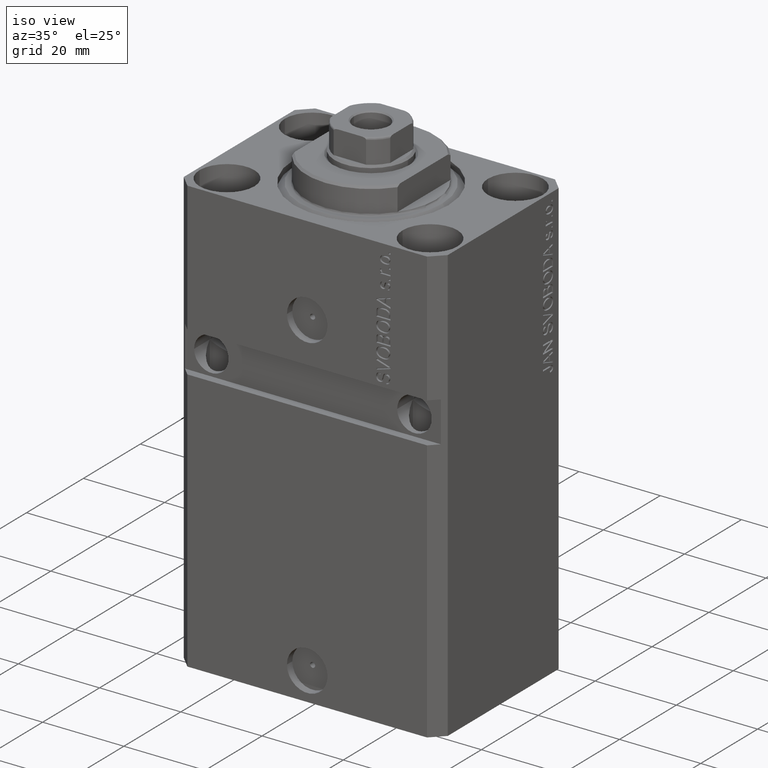
[diagram: clean part render]
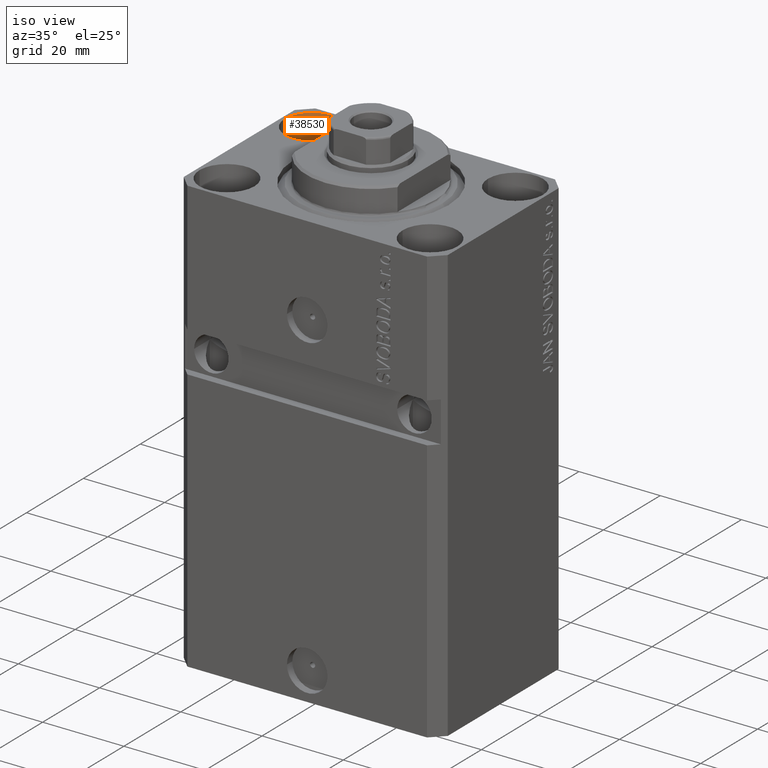
[diagram: same view with one face highlighted and labeled with its STEP entity id]
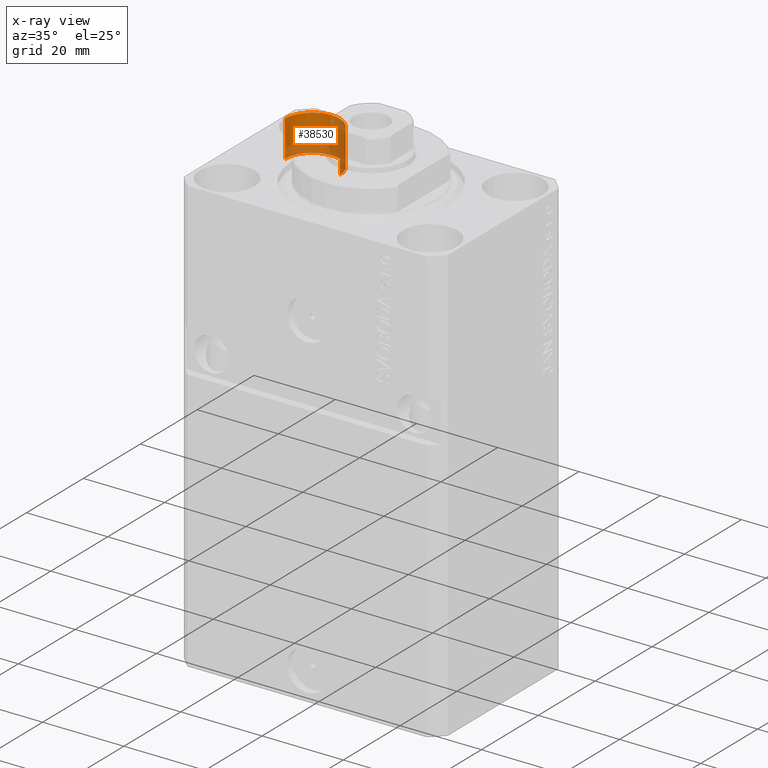
[diagram: x-ray of the same camera — body ghosted, the highlighted face saturated]
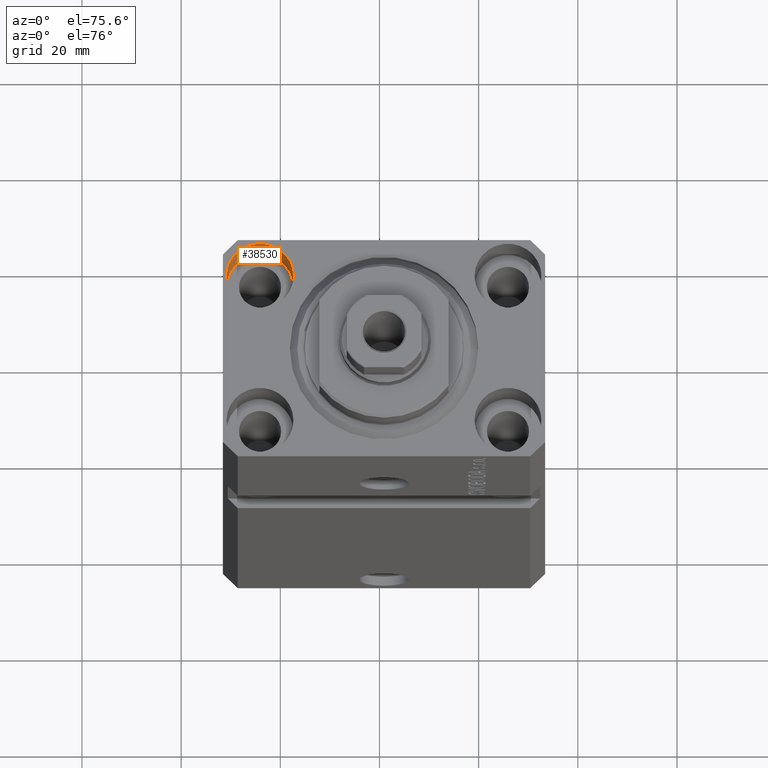
[diagram: same view with one face highlighted and labeled with its STEP entity id]
A machine part, iso view. The second image highlights one B-rep face of the part: STEP entity #38530.
The next image is the same camera in x-ray: the body ghosted, the highlighted face saturated — about 52% of this face is hidden behind the body in this view.
A second angle (auxiliary view) of the same face is appended — the face is thin or edge-on in the first view.
In plain terms, the highlighted cylindrical surface (edge-blend (fillet) strip) has radius 6.75 mm, axis along (0, 0, 1).
Its self-contained STEP definition (entity closure, byte-faithful):
#710 = VERTEX_POINT ( 'NONE', #19297 ) ;
#852 = VECTOR ( 'NONE', #27162, 1000.000000000000000 ) ;
#1696 = EDGE_CURVE ( 'NONE', #42051, #14476, #23359, .T. ) ;
#2440 = CARTESIAN_POINT ( 'NONE',  ( -25.00000000000000355, 15.00000000000000000, 0.000000000000000000 ) ) ;
#4493 = CYLINDRICAL_SURFACE ( 'NONE', #26496, 6.750000000022533087 ) ;
#4695 = CARTESIAN_POINT ( 'NONE',  ( -18.24999999997747224, 15.00000000000000000, -9.000000000000000000 ) ) ;
#5228 = EDGE_CURVE ( 'NONE', #14476, #25274, #18801, .T. ) ;
#14476 = VERTEX_POINT ( 'NONE', #31484 ) ;
#15005 = DIRECTION ( 'NONE',  ( -0.000000000000000000, -0.000000000000000000, 1.000000000000000000 ) ) ;
#15096 = ORIENTED_EDGE ( 'NONE', *, *, #34373, .F. ) ;
#15462 = DIRECTION ( 'NONE',  ( -0.000000000000000000, -0.000000000000000000, 1.000000000000000000 ) ) ;
#16985 = DIRECTION ( 'NONE',  ( 0.000000000000000000, 0.000000000000000000, 1.000000000000000000 ) ) ;
#18794 = FACE_OUTER_BOUND ( 'NONE', #40543, .T. ) ;
#18801 = CIRCLE ( 'NONE', #37109, 6.750000000022533087 ) ;
#19297 = CARTESIAN_POINT ( 'NONE',  ( -31.75000000002253842, 15.00000000000000000, -9.000000000000000000 ) ) ;
#19546 = CARTESIAN_POINT ( 'NONE',  ( -18.24999999997747224, 15.00000000000000000, -9.000000000000000000 ) ) ;
#20527 = ORIENTED_EDGE ( 'NONE', *, *, #5228, .T. ) ;
#21554 = ORIENTED_EDGE ( 'NONE', *, *, #38472, .F. ) ;
#23359 = LINE ( 'NONE', #19546, #852 ) ;
#23452 = CIRCLE ( 'NONE', #30292, 6.750000000022533087 ) ;
#25274 = VERTEX_POINT ( 'NONE', #39250 ) ;
#25479 = CARTESIAN_POINT ( 'NONE',  ( -25.00000000000000355, 15.00000000000000000, -9.000000000000000000 ) ) ;
#26496 = AXIS2_PLACEMENT_3D ( 'NONE', #25479, #15462, #29536 ) ;
#27162 = DIRECTION ( 'NONE',  ( -0.000000000000000000, -0.000000000000000000, 1.000000000000000000 ) ) ;
#29536 = DIRECTION ( 'NONE',  ( 1.000000000000000000, 0.000000000000000000, 0.000000000000000000 ) ) ;
#29561 = CARTESIAN_POINT ( 'NONE',  ( -31.75000000002253842, 15.00000000000000000, -9.000000000000000000 ) ) ;
#30292 = AXIS2_PLACEMENT_3D ( 'NONE', #32175, #39576, #42926 ) ;
#31484 = CARTESIAN_POINT ( 'NONE',  ( -18.24999999997747224, 15.00000000000000000, 0.000000000000000000 ) ) ;
#32175 = CARTESIAN_POINT ( 'NONE',  ( -25.00000000000000355, 15.00000000000000000, -9.000000000000000000 ) ) ;
#32198 = LINE ( 'NONE', #29561, #34787 ) ;
#34373 = EDGE_CURVE ( 'NONE', #710, #25274, #32198, .T. ) ;
#34787 = VECTOR ( 'NONE', #15005, 1000.000000000000000 ) ;
#36208 = ORIENTED_EDGE ( 'NONE', *, *, #1696, .T. ) ;
#37109 = AXIS2_PLACEMENT_3D ( 'NONE', #2440, #16985, #46083 ) ;
#38472 = EDGE_CURVE ( 'NONE', #42051, #710, #23452, .T. ) ;
#38530 = ADVANCED_FACE ( 'NONE', ( #18794 ), #4493, .F. ) ;
#39250 = CARTESIAN_POINT ( 'NONE',  ( -31.75000000002253842, 15.00000000000000000, 0.000000000000000000 ) ) ;
#39576 = DIRECTION ( 'NONE',  ( 0.000000000000000000, 0.000000000000000000, 1.000000000000000000 ) ) ;
#40543 = EDGE_LOOP ( 'NONE', ( #15096, #21554, #36208, #20527 ) ) ;
#42051 = VERTEX_POINT ( 'NONE', #4695 ) ;
#42926 = DIRECTION ( 'NONE',  ( 1.000000000000000000, 0.000000000000000000, 0.000000000000000000 ) ) ;
#46083 = DIRECTION ( 'NONE',  ( 1.000000000000000000, 0.000000000000000000, 0.000000000000000000 ) ) ;